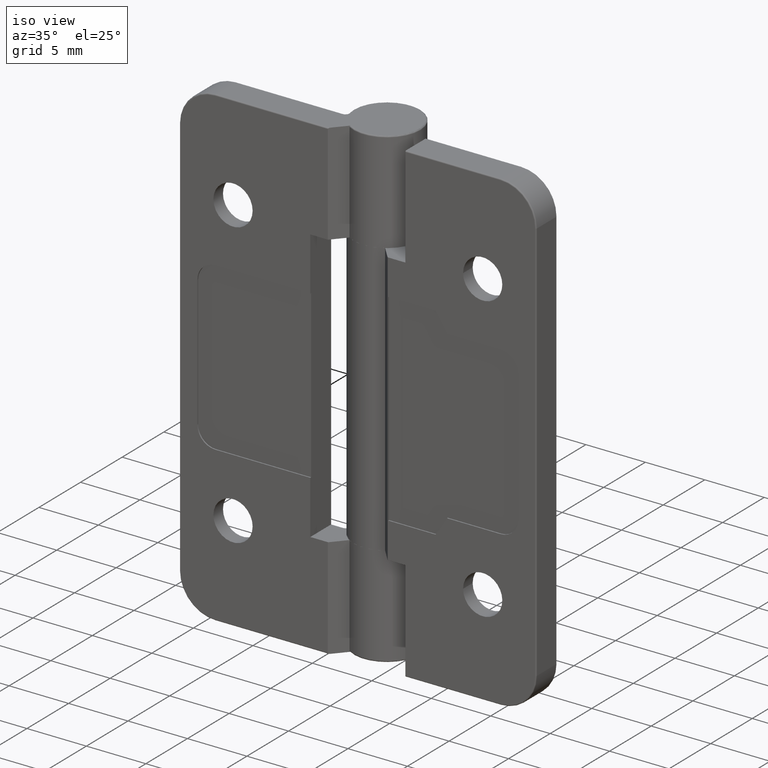
[diagram: clean part render]
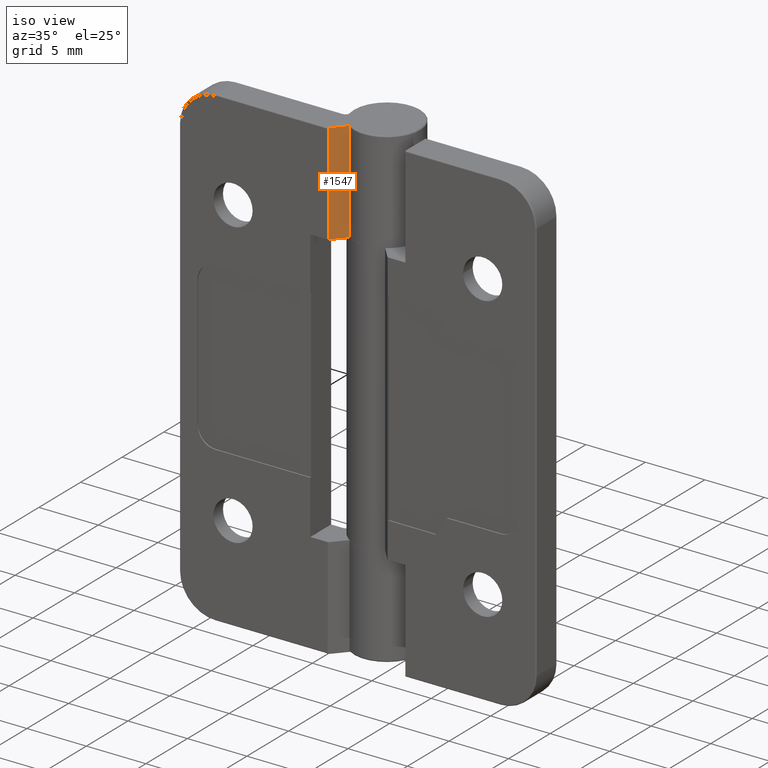
[diagram: same view with one face highlighted and labeled with its STEP entity id]
A machine part, iso view. The second image highlights one B-rep face of the part: STEP entity #1547.
In plain terms, the highlighted planar face has unit normal (0.7505, -0.6609, 0).
Its self-contained STEP definition (entity closure, byte-faithful):
#52=B_SPLINE_CURVE_WITH_KNOTS('',3,(#2510,#2511,#2512,#2513,#2514,#2515,
#2516,#2517,#2518,#2519),.UNSPECIFIED.,.F.,.F.,(4,2,2,2,4),(0.,0.00368752038014342,
0.0073983625009626,0.0111386927628095,0.014905496743291),.UNSPECIFIED.);
#56=ELLIPSE('',#1675,0.133241509402588,0.1);
#236=FACE_OUTER_BOUND('',#335,.T.);
#335=EDGE_LOOP('',(#1176,#1177,#1178,#1179,#1180,#1181));
#456=LINE('',#2411,#582);
#469=LINE('',#2473,#595);
#477=LINE('',#2508,#603);
#478=LINE('',#2520,#604);
#582=VECTOR('',#1892,1.46801104222111);
#595=VECTOR('',#1945,8.47505168655651);
#603=VECTOR('',#1985,8.4);
#604=VECTOR('',#1986,1.48124381821327);
#706=VERTEX_POINT('',#2408);
#707=VERTEX_POINT('',#2410);
#726=VERTEX_POINT('',#2472);
#736=VERTEX_POINT('',#2502);
#737=VERTEX_POINT('',#2507);
#738=VERTEX_POINT('',#2509);
#864=EDGE_CURVE('',#707,#706,#456,.T.);
#890=EDGE_CURVE('',#707,#726,#469,.T.);
#907=EDGE_CURVE('',#726,#736,#56,.T.);
#908=EDGE_CURVE('',#706,#737,#477,.T.);
#909=EDGE_CURVE('',#738,#737,#52,.F.);
#910=EDGE_CURVE('',#736,#738,#478,.T.);
#1176=ORIENTED_EDGE('',*,*,#864,.T.);
#1177=ORIENTED_EDGE('',*,*,#908,.T.);
#1178=ORIENTED_EDGE('',*,*,#909,.F.);
#1179=ORIENTED_EDGE('',*,*,#910,.F.);
#1180=ORIENTED_EDGE('',*,*,#907,.F.);
#1181=ORIENTED_EDGE('',*,*,#890,.F.);
#1494=PLANE('',#1676);
#1547=ADVANCED_FACE('',(#236),#1494,.T.);
#1675=AXIS2_PLACEMENT_3D('',#2505,#1981,#1982);
#1676=AXIS2_PLACEMENT_3D('',#2506,#1983,#1984);
#1892=DIRECTION('',(0.660851295301948,0.75051686556515,-6.60808536171843E-17));
#1945=DIRECTION('',(0.,0.,1.));
#1981=DIRECTION('center_axis',(-0.75051686556515,0.660851295301948,0.));
#1982=DIRECTION('ref_axis',(-0.660851295301948,-0.75051686556515,6.50969612906197E-17));
#1983=DIRECTION('center_axis',(0.75051686556515,-0.660851295301948,0.));
#1984=DIRECTION('ref_axis',(0.660851295301948,0.75051686556515,0.));
#1985=DIRECTION('',(0.,0.,1.));
#1986=DIRECTION('',(0.660851295301948,0.75051686556515,0.));
#2408=CARTESIAN_POINT('',(-1.5,1.13568191649262,11.5));
#2410=CARTESIAN_POINT('',(-2.47013699876939,0.0339148704698053,11.5));
#2411=CARTESIAN_POINT('',(-2.20756827243334,0.332109424806157,11.5));
#2472=CARTESIAN_POINT('',(-2.47013699876939,0.0339148704698053,19.9750516865565));
#2473=CARTESIAN_POINT('',(-2.47013699876939,0.0339148704698053,0.));
#2502=CARTESIAN_POINT('',(-2.41194717592331,0.1,20.));
#2505=CARTESIAN_POINT('Origin',(-2.41194717592331,0.1,19.9));
#2506=CARTESIAN_POINT('Origin',(-2.5,0.,0.));
#2507=CARTESIAN_POINT('',(-1.5,1.13568191649262,19.9));
#2508=CARTESIAN_POINT('',(-1.5,1.13568191649262,0.));
#2509=CARTESIAN_POINT('',(-1.43306527999907,1.21169846758318,20.));
#2510=CARTESIAN_POINT('Ctrl Pts',(-1.5,1.13568191649262,19.9));
#2511=CARTESIAN_POINT('Ctrl Pts',(-1.5,1.13568191649262,19.9122917346005));
#2512=CARTESIAN_POINT('Ctrl Pts',(-1.49808182171631,1.13786035688202,19.9267534044351));
#2513=CARTESIAN_POINT('Ctrl Pts',(-1.49180698033827,1.14498658076392,19.9495134241074));
#2514=CARTESIAN_POINT('Ctrl Pts',(-1.4863222512831,1.15121548836874,19.9618196845131));
#2515=CARTESIAN_POINT('Ctrl Pts',(-1.4746722132229,1.16444622592016,19.97931576268));
#2516=CARTESIAN_POINT('Ctrl Pts',(-1.46642719500191,1.17380994401489,19.9875729768264));
#2517=CARTESIAN_POINT('Ctrl Pts',(-1.45113246356521,1.19117989392516,19.9970885239105));
#2518=CARTESIAN_POINT('Ctrl Pts',(-1.44136293763124,1.20227496786108,20.));
#2519=CARTESIAN_POINT('Ctrl Pts',(-1.43306527999907,1.21169846758318,20.));
#2520=CARTESIAN_POINT('',(-2.5,0.,20.));